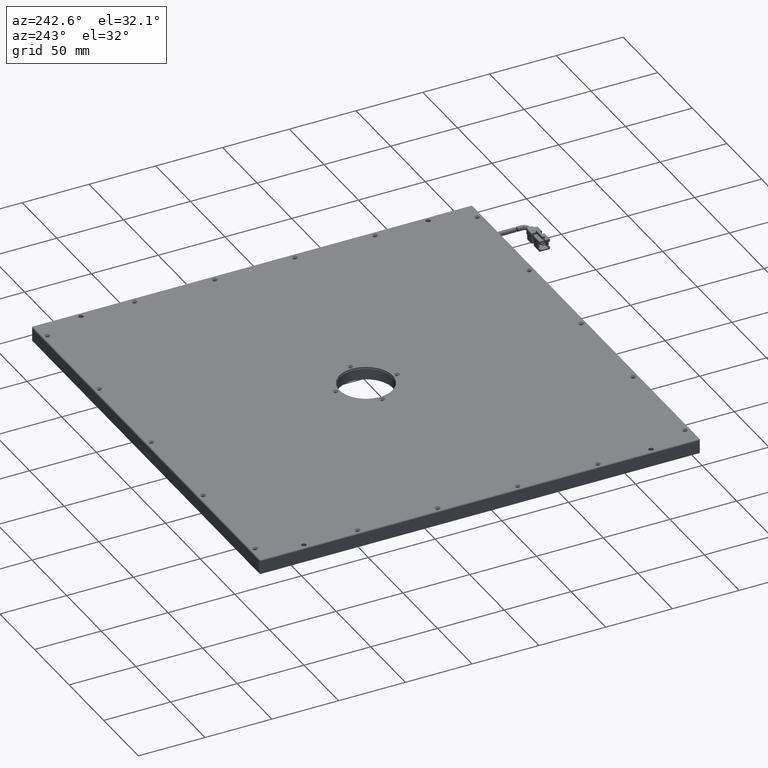
[diagram: clean part render]
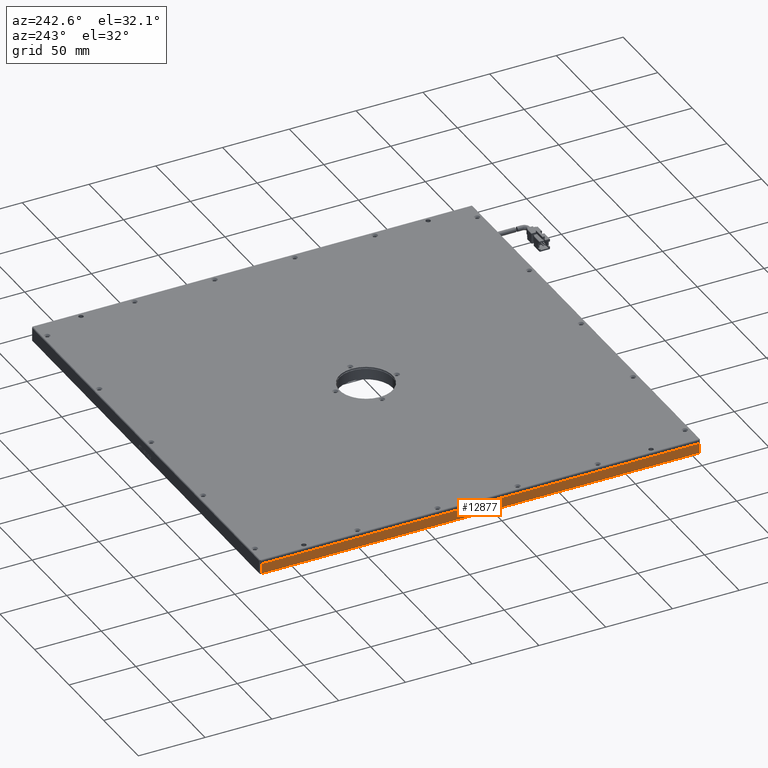
[diagram: same view with one face highlighted and labeled with its STEP entity id]
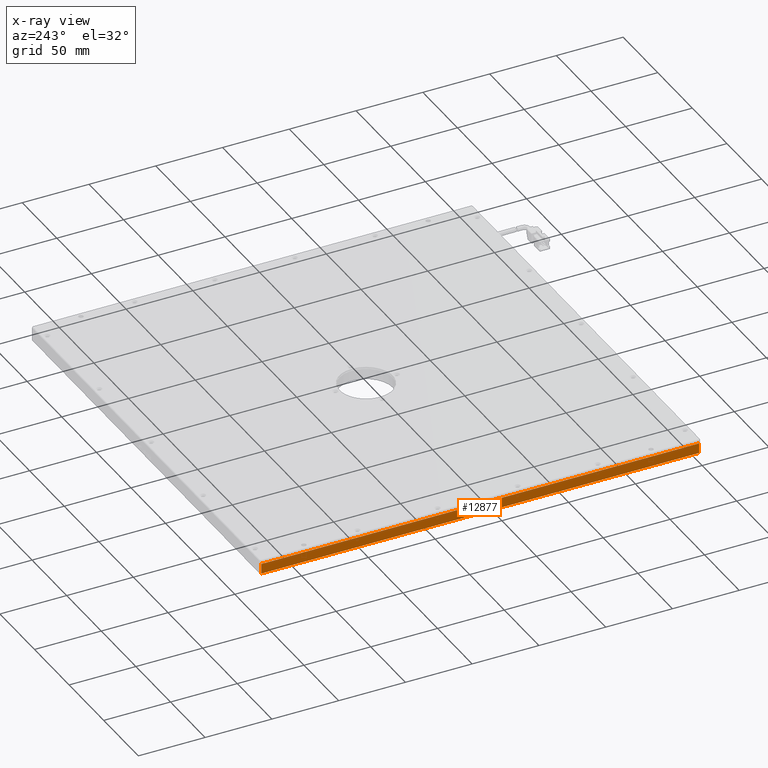
[diagram: x-ray of the same camera — body ghosted, the highlighted face saturated]
A machine part, auxiliary view. The second image highlights one B-rep face of the part: STEP entity #12877.
The next image is the same camera in x-ray: the body ghosted, the highlighted face saturated — about 0% of this face is hidden behind the body in this view.
In plain terms, the highlighted planar face has unit normal (1, 0, 0).
Its self-contained STEP definition (entity closure, byte-faithful):
#1949 = VERTEX_POINT ( 'NONE', #14524 ) ;
#2060 = AXIS2_PLACEMENT_3D ( 'NONE', #5505, #20865, #31146 ) ;
#3096 = DIRECTION ( 'NONE',  ( 0.0000000000000000000, 0.0000000000000000000, -1.000000000000000000 ) ) ;
#3245 = LINE ( 'NONE', #32280, #25697 ) ;
#4045 = CARTESIAN_POINT ( 'NONE',  ( -196.2439076390645300, -99.69342595209404600, 0.5000000000190429900 ) ) ;
#5463 = ORIENTED_EDGE ( 'NONE', *, *, #19035, .F. ) ;
#5505 = CARTESIAN_POINT ( 'NONE',  ( -196.2439076390645300, -100.6934259520940500, 8.000000000019099400 ) ) ;
#6622 = EDGE_LOOP ( 'NONE', ( #5463, #10996, #11200, #14606 ) ) ;
#10996 = ORIENTED_EDGE ( 'NONE', *, *, #32007, .F. ) ;
#11200 = ORIENTED_EDGE ( 'NONE', *, *, #31960, .F. ) ;
#12422 = VERTEX_POINT ( 'NONE', #33027 ) ;
#12671 = CARTESIAN_POINT ( 'NONE',  ( -196.2439076390645600, 228.3065740479061400, 0.5000000000190641900 ) ) ;
#12785 = VERTEX_POINT ( 'NONE', #12671 ) ;
#12877 = ADVANCED_FACE ( 'NONE', ( #25985 ), #19973, .F. ) ;
#14524 = CARTESIAN_POINT ( 'NONE',  ( -196.2439076390645600, 228.3065740479060300, 8.000000000019099400 ) ) ;
#14606 = ORIENTED_EDGE ( 'NONE', *, *, #31544, .F. ) ;
#16164 = CARTESIAN_POINT ( 'NONE',  ( -196.2439076390645300, -99.69342595209404600, 8.000000000019099400 ) ) ;
#17219 = LINE ( 'NONE', #16164, #33271 ) ;
#19035 = EDGE_CURVE ( 'NONE', #26520, #12785, #3245, .T. ) ;
#19973 = PLANE ( 'NONE',  #2060 ) ;
#20846 = LINE ( 'NONE', #26415, #31231 ) ;
#20865 = DIRECTION ( 'NONE',  ( 1.000000000000000000, 0.0000000000000000000, 0.0000000000000000000 ) ) ;
#20948 = LINE ( 'NONE', #26335, #26588 ) ;
#24577 = DIRECTION ( 'NONE',  ( 0.0000000000000000000, 1.000000000000000000, 0.0000000000000000000 ) ) ;
#25697 = VECTOR ( 'NONE', #24577, 1000.000000000000000 ) ;
#25985 = FACE_OUTER_BOUND ( 'NONE', #6622, .T. ) ;
#26335 = CARTESIAN_POINT ( 'NONE',  ( -196.2439076390645300, 228.3065740479060800, 8.000000000019099400 ) ) ;
#26415 = CARTESIAN_POINT ( 'NONE',  ( -196.2439076390645300, -100.6934259520940500, 8.000000000019099400 ) ) ;
#26441 = DIRECTION ( 'NONE',  ( -0.0000000000000000000, -0.0000000000000000000, 1.000000000000000000 ) ) ;
#26520 = VERTEX_POINT ( 'NONE', #4045 ) ;
#26588 = VECTOR ( 'NONE', #26441, 1000.000000000000000 ) ;
#28776 = DIRECTION ( 'NONE',  ( 0.0000000000000000000, -1.000000000000000000, -0.0000000000000000000 ) ) ;
#31146 = DIRECTION ( 'NONE',  ( 0.0000000000000000000, 0.0000000000000000000, -1.000000000000000000 ) ) ;
#31231 = VECTOR ( 'NONE', #28776, 1000.000000000000000 ) ;
#31544 = EDGE_CURVE ( 'NONE', #12785, #1949, #20948, .T. ) ;
#31960 = EDGE_CURVE ( 'NONE', #1949, #12422, #20846, .T. ) ;
#32007 = EDGE_CURVE ( 'NONE', #12422, #26520, #17219, .T. ) ;
#32280 = CARTESIAN_POINT ( 'NONE',  ( -196.2439076390645300, -100.6934259520940500, 0.5000000000190431000 ) ) ;
#33027 = CARTESIAN_POINT ( 'NONE',  ( -196.2439076390645300, -99.69342595209404600, 8.000000000019099400 ) ) ;
#33271 = VECTOR ( 'NONE', #3096, 1000.000000000000000 ) ;